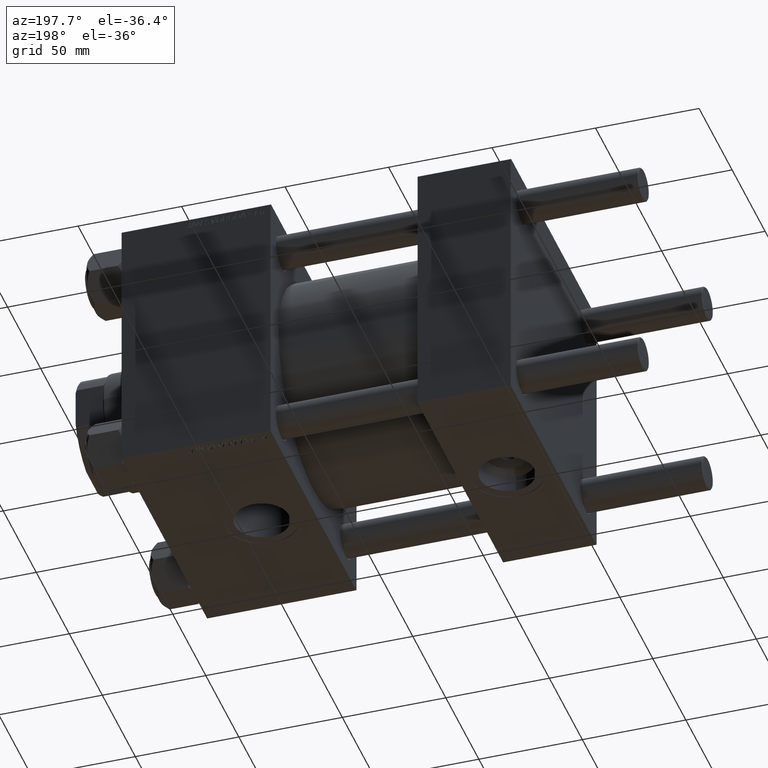
[diagram: clean part render]
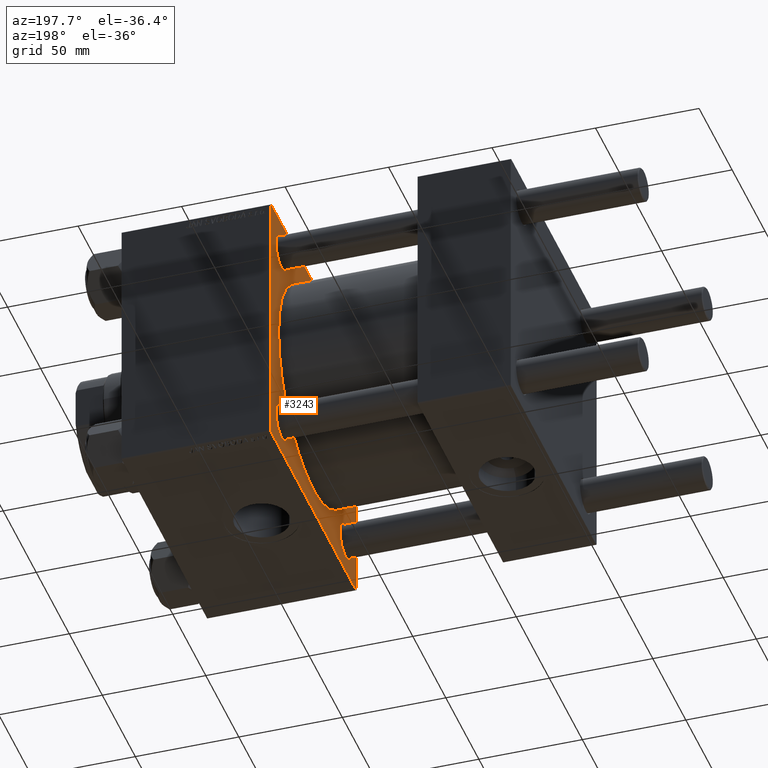
[diagram: same view with one face highlighted and labeled with its STEP entity id]
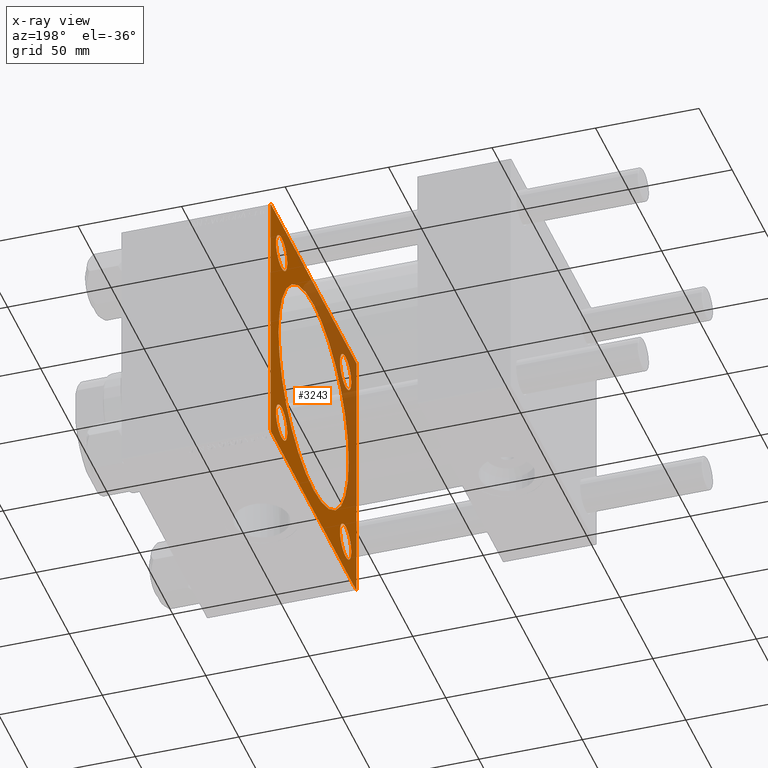
[diagram: x-ray of the same camera — body ghosted, the highlighted face saturated]
A machine part, auxiliary view. The second image highlights one B-rep face of the part: STEP entity #3243.
The next image is the same camera in x-ray: the body ghosted, the highlighted face saturated — about 31% of this face is hidden behind the body in this view.
In plain terms, the highlighted planar face has unit normal (-1, 0, 0).
Its self-contained STEP definition (entity closure, byte-faithful):
#169 = EDGE_CURVE ( 'NONE', #16785, #197, #50442, .T. ) ;
#197 = VERTEX_POINT ( 'NONE', #9211 ) ;
#494 = DIRECTION ( 'NONE',  ( 0.000000000000000000, 0.000000000000000000, 1.000000000000000000 ) ) ;
#1530 = CARTESIAN_POINT ( 'NONE',  ( 115.9999999999999858, -48.44999999999999574, 48.45000000000003126 ) ) ;
#1837 = ORIENTED_EDGE ( 'NONE', *, *, #18693, .T. ) ;
#2122 = LINE ( 'NONE', #44797, #33922 ) ;
#2188 = CARTESIAN_POINT ( 'NONE',  ( 115.9999999999999858, 48.45000000000000995, -48.45000000000001705 ) ) ;
#2297 = VERTEX_POINT ( 'NONE', #6120 ) ;
#2440 = DIRECTION ( 'NONE',  ( 0.000000000000000000, 0.000000000000000000, 1.000000000000000000 ) ) ;
#3100 = ORIENTED_EDGE ( 'NONE', *, *, #169, .T. ) ;
#3243 = ADVANCED_FACE ( 'NONE', ( #18910, #50085, #41653, #22221, #37811, #15061 ), #38831, .T. ) ;
#3294 = CARTESIAN_POINT ( 'NONE',  ( 115.9999999999999858, 65.00000000000002842, 65.00000000000001421 ) ) ;
#3784 = VECTOR ( 'NONE', #22718, 1000.000000000000000 ) ;
#3852 = ORIENTED_EDGE ( 'NONE', *, *, #38425, .T. ) ;
#4000 = EDGE_CURVE ( 'NONE', #12126, #49153, #5618, .T. ) ;
#4314 = AXIS2_PLACEMENT_3D ( 'NONE', #27838, #23747, #494 ) ;
#4677 = LINE ( 'NONE', #8264, #6526 ) ;
#4788 = DIRECTION ( 'NONE',  ( -0.000000000000000000, -0.7071067811865671127, -0.7071067811865279218 ) ) ;
#5027 = LINE ( 'NONE', #32130, #14933 ) ;
#5100 = DIRECTION ( 'NONE',  ( 0.000000000000000000, 0.000000000000000000, 1.000000000000000000 ) ) ;
#5191 = EDGE_CURVE ( 'NONE', #2297, #8719, #47286, .T. ) ;
#5618 = CIRCLE ( 'NONE', #39090, 8.499999999999952038 ) ;
#5995 = EDGE_CURVE ( 'NONE', #39955, #12438, #4677, .T. ) ;
#6120 = CARTESIAN_POINT ( 'NONE',  ( 115.9999999999999858, -48.44999999999999574, 56.94999999999998153 ) ) ;
#6526 = VECTOR ( 'NONE', #32038, 1000.000000000000000 ) ;
#6863 = LINE ( 'NONE', #3294, #3784 ) ;
#7381 = DIRECTION ( 'NONE',  ( 1.000000000000000000, -0.000000000000000000, 0.000000000000000000 ) ) ;
#7645 = DIRECTION ( 'NONE',  ( -1.000000000000000000, 0.000000000000000000, -0.000000000000000000 ) ) ;
#7804 = CARTESIAN_POINT ( 'NONE',  ( 115.9999999999999858, 6.490628035480973107E-15, -53.00000000000000711 ) ) ;
#7974 = LINE ( 'NONE', #21731, #13545 ) ;
#8264 = CARTESIAN_POINT ( 'NONE',  ( 115.9999999999999858, 65.00000000000002842, -64.99999999999998579 ) ) ;
#8719 = VERTEX_POINT ( 'NONE', #14066 ) ;
#9211 = CARTESIAN_POINT ( 'NONE',  ( 115.9999999999999858, 48.45000000000000995, -56.94999999999996732 ) ) ;
#10671 = CARTESIAN_POINT ( 'NONE',  ( 115.9999999999999858, 48.45000000000000995, 39.95000000000005969 ) ) ;
#12126 = VERTEX_POINT ( 'NONE', #30007 ) ;
#12438 = VERTEX_POINT ( 'NONE', #27624 ) ;
#12541 = DIRECTION ( 'NONE',  ( 0.000000000000000000, 0.000000000000000000, -1.000000000000000000 ) ) ;
#12547 = AXIS2_PLACEMENT_3D ( 'NONE', #31415, #7381, #22981 ) ;
#12608 = ORIENTED_EDGE ( 'NONE', *, *, #22200, .F. ) ;
#12760 = DIRECTION ( 'NONE',  ( 1.000000000000000000, -0.000000000000000000, 0.000000000000000000 ) ) ;
#12824 = CARTESIAN_POINT ( 'NONE',  ( 115.9999999999999858, -64.50000000000008527, 65.00000000000000000 ) ) ;
#13104 = DIRECTION ( 'NONE',  ( -0.000000000000000000, 0.7071067811865376918, 0.7071067811865574537 ) ) ;
#13327 = VECTOR ( 'NONE', #38734, 1000.000000000000000 ) ;
#13545 = VECTOR ( 'NONE', #40667, 1000.000000000000000 ) ;
#14066 = CARTESIAN_POINT ( 'NONE',  ( 115.9999999999999858, -48.44999999999999574, 39.95000000000007390 ) ) ;
#14090 = AXIS2_PLACEMENT_3D ( 'NONE', #26444, #34384, #12541 ) ;
#14186 = ORIENTED_EDGE ( 'NONE', *, *, #47754, .T. ) ;
#14911 = DIRECTION ( 'NONE',  ( 0.000000000000000000, 0.000000000000000000, 1.000000000000000000 ) ) ;
#14933 = VECTOR ( 'NONE', #44632, 1000.000000000000000 ) ;
#15061 = FACE_OUTER_BOUND ( 'NONE', #24597, .T. ) ;
#15146 = VERTEX_POINT ( 'NONE', #12824 ) ;
#15273 = ORIENTED_EDGE ( 'NONE', *, *, #48274, .T. ) ;
#15454 = AXIS2_PLACEMENT_3D ( 'NONE', #33002, #21982, #29413 ) ;
#16207 = AXIS2_PLACEMENT_3D ( 'NONE', #1530, #12760, #5100 ) ;
#16292 = LINE ( 'NONE', #17043, #20920 ) ;
#16409 = EDGE_LOOP ( 'NONE', ( #42783, #37572 ) ) ;
#16699 = ORIENTED_EDGE ( 'NONE', *, *, #21186, .T. ) ;
#16703 = ORIENTED_EDGE ( 'NONE', *, *, #24522, .T. ) ;
#16785 = VERTEX_POINT ( 'NONE', #34938 ) ;
#17043 = CARTESIAN_POINT ( 'NONE',  ( 115.9999999999999858, 64.74999999999822364, -64.75000000000180478 ) ) ;
#17605 = CARTESIAN_POINT ( 'NONE',  ( 115.9999999999999858, -64.75000000000180478, -64.74999999999820943 ) ) ;
#18150 = CARTESIAN_POINT ( 'NONE',  ( 115.9999999999999858, 48.45000000000000995, 48.45000000000001705 ) ) ;
#18693 = EDGE_CURVE ( 'NONE', #12438, #44020, #26727, .T. ) ;
#18910 = FACE_BOUND ( 'NONE', #32874, .T. ) ;
#20798 = CARTESIAN_POINT ( 'NONE',  ( 115.9999999999999858, 65.00000000000002842, -64.50000000000001421 ) ) ;
#20844 = CARTESIAN_POINT ( 'NONE',  ( 115.9999999999999858, 48.45000000000000995, 56.94999999999996732 ) ) ;
#20920 = VECTOR ( 'NONE', #4788, 1000.000000000000000 ) ;
#20933 = EDGE_CURVE ( 'NONE', #49210, #44487, #29606, .T. ) ;
#21130 = EDGE_LOOP ( 'NONE', ( #3100, #39968 ) ) ;
#21186 = EDGE_CURVE ( 'NONE', #49153, #12126, #48387, .T. ) ;
#21530 = VECTOR ( 'NONE', #25650, 1000.000000000000000 ) ;
#21634 = ORIENTED_EDGE ( 'NONE', *, *, #28663, .T. ) ;
#21646 = CIRCLE ( 'NONE', #50221, 53.00000000000000711 ) ;
#21731 = CARTESIAN_POINT ( 'NONE',  ( 115.9999999999999858, 64.75000000000181899, 64.74999999999822364 ) ) ;
#21753 = VERTEX_POINT ( 'NONE', #20798 ) ;
#21982 = DIRECTION ( 'NONE',  ( 1.000000000000000000, -0.000000000000000000, 0.000000000000000000 ) ) ;
#22096 = DIRECTION ( 'NONE',  ( 1.000000000000000000, -0.000000000000000000, 0.000000000000000000 ) ) ;
#22200 = EDGE_CURVE ( 'NONE', #41844, #44020, #5027, .T. ) ;
#22221 = FACE_BOUND ( 'NONE', #26501, .T. ) ;
#22718 = DIRECTION ( 'NONE',  ( 0.000000000000000000, 0.000000000000000000, -1.000000000000000000 ) ) ;
#22981 = DIRECTION ( 'NONE',  ( 0.000000000000000000, 0.000000000000000000, 1.000000000000000000 ) ) ;
#23041 = EDGE_CURVE ( 'NONE', #23661, #15146, #45826, .T. ) ;
#23580 = AXIS2_PLACEMENT_3D ( 'NONE', #43408, #7645, #43168 ) ;
#23661 = VERTEX_POINT ( 'NONE', #34731 ) ;
#23747 = DIRECTION ( 'NONE',  ( 1.000000000000000000, -0.000000000000000000, 0.000000000000000000 ) ) ;
#24019 = CIRCLE ( 'NONE', #12547, 8.499999999999952038 ) ;
#24522 = EDGE_CURVE ( 'NONE', #32331, #43052, #24019, .T. ) ;
#24597 = EDGE_LOOP ( 'NONE', ( #39718, #1837, #12608, #14186, #43527, #21634, #35084, #15273 ) ) ;
#25039 = CIRCLE ( 'NONE', #34830, 8.499999999999952038 ) ;
#25650 = DIRECTION ( 'NONE',  ( 0.000000000000000000, -1.000000000000000000, -1.067522139062650425E-16 ) ) ;
#25795 = CARTESIAN_POINT ( 'NONE',  ( 115.9999999999999858, -64.99999999999998579, 64.50000000000008527 ) ) ;
#26206 = DIRECTION ( 'NONE',  ( 0.000000000000000000, 0.000000000000000000, -1.000000000000000000 ) ) ;
#26377 = VERTEX_POINT ( 'NONE', #40870 ) ;
#26444 = CARTESIAN_POINT ( 'NONE',  ( 115.9999999999999858, 0.000000000000000000, 0.000000000000000000 ) ) ;
#26501 = EDGE_LOOP ( 'NONE', ( #16699, #29558 ) ) ;
#26727 = LINE ( 'NONE', #17605, #13327 ) ;
#26889 = EDGE_CURVE ( 'NONE', #44487, #49210, #21646, .T. ) ;
#27624 = CARTESIAN_POINT ( 'NONE',  ( 115.9999999999999858, -64.50000000000002842, -65.00000000000001421 ) ) ;
#27838 = CARTESIAN_POINT ( 'NONE',  ( 115.9999999999999858, -48.44999999999999574, -48.45000000000003126 ) ) ;
#28114 = CARTESIAN_POINT ( 'NONE',  ( 115.9999999999999858, 0.000000000000000000, 53.00000000000000711 ) ) ;
#28258 = AXIS2_PLACEMENT_3D ( 'NONE', #18150, #33756, #29917 ) ;
#28663 = EDGE_CURVE ( 'NONE', #23661, #26377, #7974, .T. ) ;
#28910 = EDGE_CURVE ( 'NONE', #43052, #32331, #50297, .T. ) ;
#29413 = DIRECTION ( 'NONE',  ( 0.000000000000000000, 0.000000000000000000, 1.000000000000000000 ) ) ;
#29558 = ORIENTED_EDGE ( 'NONE', *, *, #4000, .T. ) ;
#29606 = CIRCLE ( 'NONE', #14090, 53.00000000000000711 ) ;
#29739 = DIRECTION ( 'NONE',  ( 0.000000000000000000, 0.000000000000000000, 1.000000000000000000 ) ) ;
#29917 = DIRECTION ( 'NONE',  ( 0.000000000000000000, 0.000000000000000000, 1.000000000000000000 ) ) ;
#30007 = CARTESIAN_POINT ( 'NONE',  ( 115.9999999999999858, -48.44999999999999574, -56.94999999999998153 ) ) ;
#31415 = CARTESIAN_POINT ( 'NONE',  ( 115.9999999999999858, 48.45000000000000995, 48.45000000000001705 ) ) ;
#31533 = EDGE_LOOP ( 'NONE', ( #16703, #32132 ) ) ;
#31806 = AXIS2_PLACEMENT_3D ( 'NONE', #46351, #49940, #14911 ) ;
#32038 = DIRECTION ( 'NONE',  ( 0.000000000000000000, -1.000000000000000000, -2.135044278125300850E-16 ) ) ;
#32130 = CARTESIAN_POINT ( 'NONE',  ( 115.9999999999999858, -64.99999999999998579, 65.00000000000000000 ) ) ;
#32132 = ORIENTED_EDGE ( 'NONE', *, *, #28910, .T. ) ;
#32331 = VERTEX_POINT ( 'NONE', #20844 ) ;
#32874 = EDGE_LOOP ( 'NONE', ( #50217, #3852 ) ) ;
#33002 = CARTESIAN_POINT ( 'NONE',  ( 115.9999999999999858, 48.45000000000000995, -48.45000000000001705 ) ) ;
#33088 = CARTESIAN_POINT ( 'NONE',  ( 115.9999999999999858, -48.44999999999999574, -48.45000000000003126 ) ) ;
#33199 = EDGE_CURVE ( 'NONE', #197, #16785, #25039, .T. ) ;
#33756 = DIRECTION ( 'NONE',  ( 1.000000000000000000, -0.000000000000000000, 0.000000000000000000 ) ) ;
#33834 = CARTESIAN_POINT ( 'NONE',  ( 115.9999999999999858, 65.00000000000002842, 65.00000000000001421 ) ) ;
#33922 = VECTOR ( 'NONE', #13104, 999.9999999999998863 ) ;
#34384 = DIRECTION ( 'NONE',  ( 1.000000000000000000, 0.000000000000000000, 0.000000000000000000 ) ) ;
#34731 = CARTESIAN_POINT ( 'NONE',  ( 115.9999999999999858, 64.50000000000005684, 65.00000000000001421 ) ) ;
#34796 = CARTESIAN_POINT ( 'NONE',  ( 115.9999999999999858, -48.44999999999999574, -39.95000000000007390 ) ) ;
#34830 = AXIS2_PLACEMENT_3D ( 'NONE', #2188, #22096, #2440 ) ;
#34938 = CARTESIAN_POINT ( 'NONE',  ( 115.9999999999999858, 48.45000000000000995, -39.95000000000005969 ) ) ;
#35084 = ORIENTED_EDGE ( 'NONE', *, *, #45093, .T. ) ;
#37572 = ORIENTED_EDGE ( 'NONE', *, *, #26889, .T. ) ;
#37811 = FACE_BOUND ( 'NONE', #16409, .T. ) ;
#38252 = CIRCLE ( 'NONE', #16207, 8.499999999999952038 ) ;
#38425 = EDGE_CURVE ( 'NONE', #8719, #2297, #38252, .T. ) ;
#38734 = DIRECTION ( 'NONE',  ( 0.000000000000000000, -0.7071067811865279218, 0.7071067811865672237 ) ) ;
#38831 = PLANE ( 'NONE',  #23580 ) ;
#39090 = AXIS2_PLACEMENT_3D ( 'NONE', #33088, #41496, #29739 ) ;
#39718 = ORIENTED_EDGE ( 'NONE', *, *, #5995, .T. ) ;
#39955 = VERTEX_POINT ( 'NONE', #45382 ) ;
#39968 = ORIENTED_EDGE ( 'NONE', *, *, #33199, .T. ) ;
#40667 = DIRECTION ( 'NONE',  ( 0.000000000000000000, 0.7071067811865279218, -0.7071067811865671127 ) ) ;
#40870 = CARTESIAN_POINT ( 'NONE',  ( 115.9999999999999858, 65.00000000000002842, 64.50000000000001421 ) ) ;
#41496 = DIRECTION ( 'NONE',  ( 1.000000000000000000, -0.000000000000000000, 0.000000000000000000 ) ) ;
#41653 = FACE_BOUND ( 'NONE', #21130, .T. ) ;
#41844 = VERTEX_POINT ( 'NONE', #25795 ) ;
#42783 = ORIENTED_EDGE ( 'NONE', *, *, #20933, .T. ) ;
#43052 = VERTEX_POINT ( 'NONE', #10671 ) ;
#43168 = DIRECTION ( 'NONE',  ( -0.000000000000000000, 0.000000000000000000, 1.000000000000000000 ) ) ;
#43408 = CARTESIAN_POINT ( 'NONE',  ( 115.9999999999999858, 0.000000000000000000, 0.000000000000000000 ) ) ;
#43527 = ORIENTED_EDGE ( 'NONE', *, *, #23041, .F. ) ;
#44020 = VERTEX_POINT ( 'NONE', #44193 ) ;
#44193 = CARTESIAN_POINT ( 'NONE',  ( 115.9999999999999858, -64.99999999999998579, -64.50000000000002842 ) ) ;
#44487 = VERTEX_POINT ( 'NONE', #7804 ) ;
#44632 = DIRECTION ( 'NONE',  ( 0.000000000000000000, 0.000000000000000000, -1.000000000000000000 ) ) ;
#44797 = CARTESIAN_POINT ( 'NONE',  ( 115.9999999999999858, -64.75000000000093792, 64.74999999999914735 ) ) ;
#45093 = EDGE_CURVE ( 'NONE', #26377, #21753, #6863, .T. ) ;
#45382 = CARTESIAN_POINT ( 'NONE',  ( 115.9999999999999858, 64.50000000000002842, -64.99999999999998579 ) ) ;
#45826 = LINE ( 'NONE', #33834, #21530 ) ;
#45885 = CARTESIAN_POINT ( 'NONE',  ( 115.9999999999999858, 0.000000000000000000, 0.000000000000000000 ) ) ;
#46351 = CARTESIAN_POINT ( 'NONE',  ( 115.9999999999999858, -48.44999999999999574, 48.45000000000003126 ) ) ;
#47286 = CIRCLE ( 'NONE', #31806, 8.499999999999952038 ) ;
#47754 = EDGE_CURVE ( 'NONE', #41844, #15146, #2122, .T. ) ;
#48274 = EDGE_CURVE ( 'NONE', #21753, #39955, #16292, .T. ) ;
#48387 = CIRCLE ( 'NONE', #4314, 8.499999999999952038 ) ;
#49153 = VERTEX_POINT ( 'NONE', #34796 ) ;
#49210 = VERTEX_POINT ( 'NONE', #28114 ) ;
#49940 = DIRECTION ( 'NONE',  ( 1.000000000000000000, -0.000000000000000000, 0.000000000000000000 ) ) ;
#49987 = DIRECTION ( 'NONE',  ( 1.000000000000000000, 0.000000000000000000, 0.000000000000000000 ) ) ;
#50085 = FACE_BOUND ( 'NONE', #31533, .T. ) ;
#50217 = ORIENTED_EDGE ( 'NONE', *, *, #5191, .T. ) ;
#50221 = AXIS2_PLACEMENT_3D ( 'NONE', #45885, #49987, #26206 ) ;
#50297 = CIRCLE ( 'NONE', #28258, 8.499999999999952038 ) ;
#50442 = CIRCLE ( 'NONE', #15454, 8.499999999999952038 ) ;